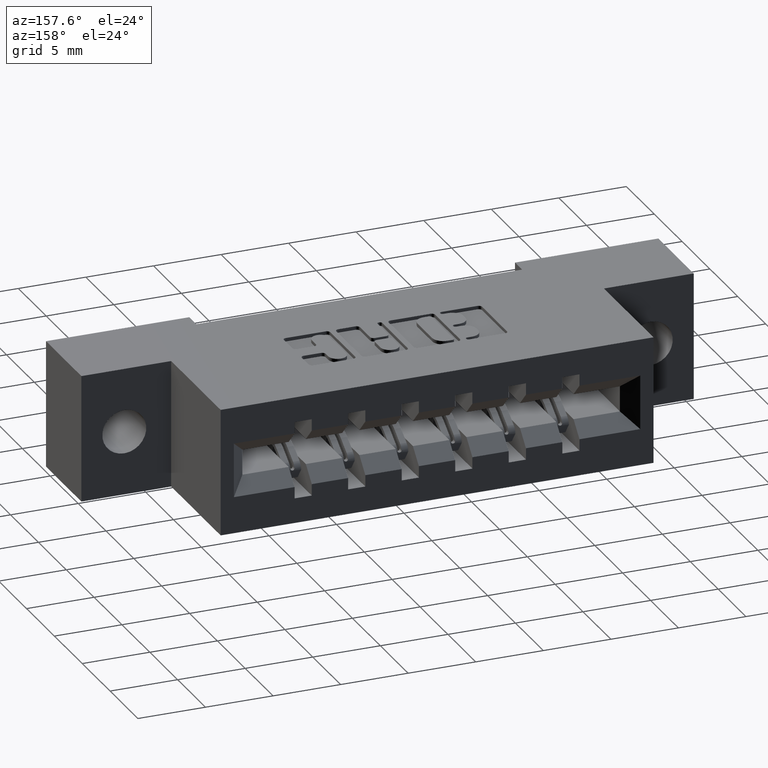
[diagram: clean part render]
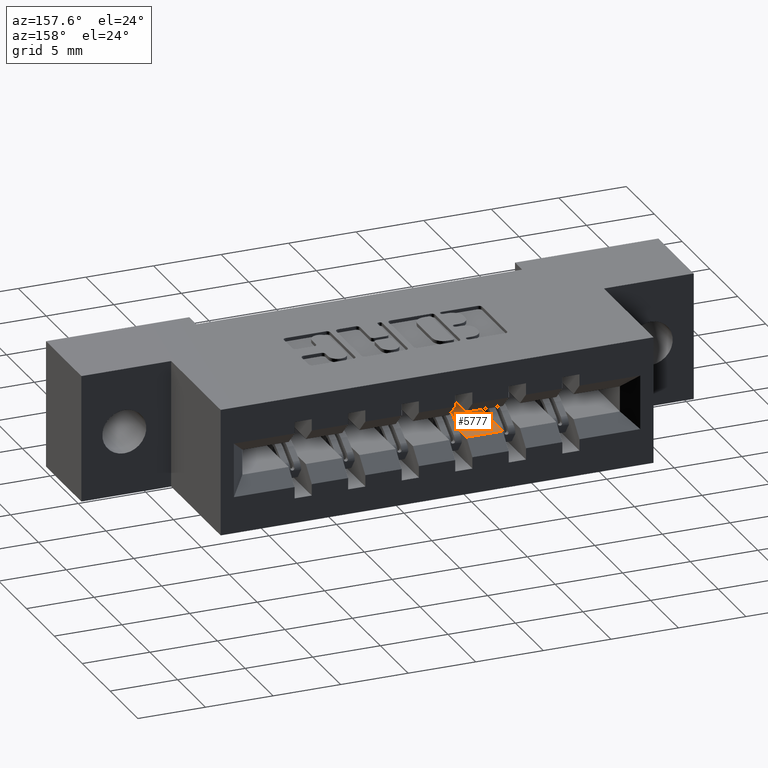
[diagram: same view with one face highlighted and labeled with its STEP entity id]
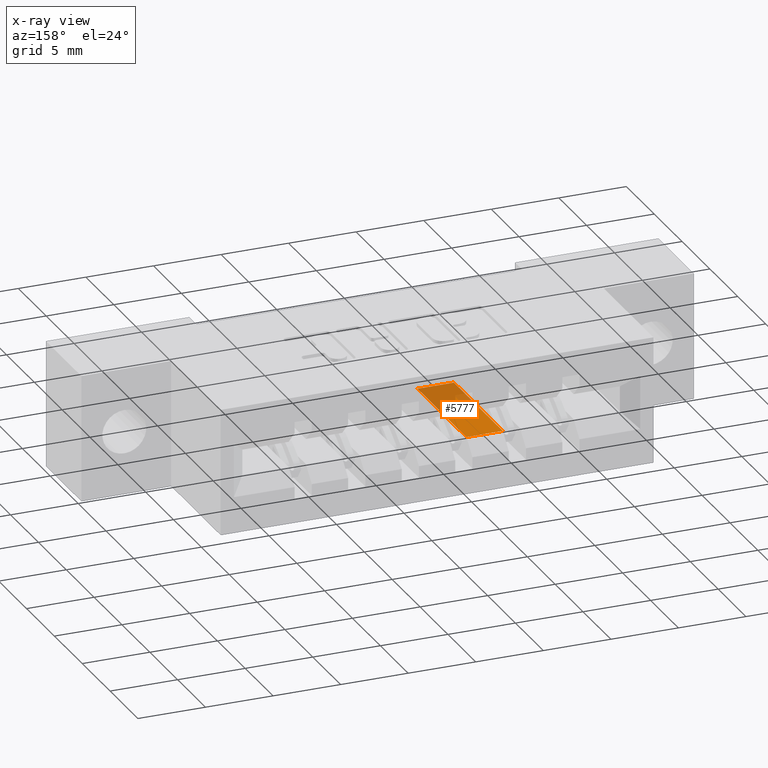
[diagram: x-ray of the same camera — body ghosted, the highlighted face saturated]
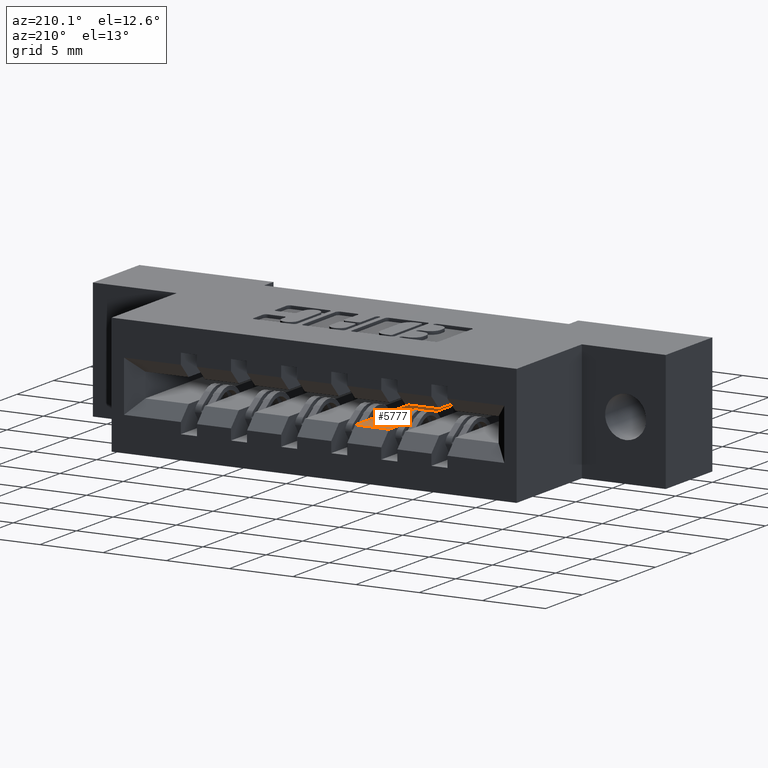
[diagram: same view with one face highlighted and labeled with its STEP entity id]
A machine part, auxiliary view. The second image highlights one B-rep face of the part: STEP entity #5777.
The next image is the same camera in x-ray: the body ghosted, the highlighted face saturated — about 46% of this face is hidden behind the body in this view.
A second angle (auxiliary view) of the same face is appended — the face is thin or edge-on in the first view.
In plain terms, the highlighted planar face has unit normal (0, 0, -1).
Its self-contained STEP definition (entity closure, byte-faithful):
#202 = DIRECTION ( 'NONE',  ( -1.000000000000000000, 0.0000000000000000000, -1.552186360036512475E-16 ) ) ;
#278 = CARTESIAN_POINT ( 'NONE',  ( 0.6829999999999999405, 0.5999999999999999778, -0.2220000000000002804 ) ) ;
#563 = VERTEX_POINT ( 'NONE', #1014 ) ;
#648 = ORIENTED_EDGE ( 'NONE', *, *, #4396, .F. ) ;
#805 = VERTEX_POINT ( 'NONE', #4096 ) ;
#927 = CARTESIAN_POINT ( 'NONE',  ( 0.3419999999999999152, 0.5579999999999999405, -0.2220000000000002804 ) ) ;
#970 = DIRECTION ( 'NONE',  ( 1.552186360036512475E-16, 0.0000000000000000000, -1.000000000000000000 ) ) ;
#1014 = CARTESIAN_POINT ( 'NONE',  ( 0.6829999999999999405, 0.5579999999999999405, -0.2220000000000002249 ) ) ;
#1562 = DIRECTION ( 'NONE',  ( -1.000000000000000000, -0.0000000000000000000, -1.552186360036512475E-16 ) ) ;
#1813 = FACE_OUTER_BOUND ( 'NONE', #7100, .T. ) ;
#1869 = AXIS2_PLACEMENT_3D ( 'NONE', #5036, #970, #3554 ) ;
#1955 = EDGE_CURVE ( 'NONE', #6454, #805, #2193, .T. ) ;
#2064 = DIRECTION ( 'NONE',  ( 0.0000000000000000000, -1.000000000000000000, 0.0000000000000000000 ) ) ;
#2193 = LINE ( 'NONE', #2743, #3804 ) ;
#2195 = LINE ( 'NONE', #4608, #4304 ) ;
#2444 = PLANE ( 'NONE',  #1869 ) ;
#2476 = EDGE_CURVE ( 'NONE', #563, #3272, #7389, .T. ) ;
#2743 = CARTESIAN_POINT ( 'NONE',  ( 0.7889999999999998126, 0.5999999999999999778, -0.2220000000000002804 ) ) ;
#3272 = VERTEX_POINT ( 'NONE', #6816 ) ;
#3542 = DIRECTION ( 'NONE',  ( 0.0000000000000000000, -1.000000000000000000, 0.0000000000000000000 ) ) ;
#3554 = DIRECTION ( 'NONE',  ( -1.000000000000000000, 0.0000000000000000000, -1.552186360036512475E-16 ) ) ;
#3599 = ORIENTED_EDGE ( 'NONE', *, *, #2476, .T. ) ;
#3804 = VECTOR ( 'NONE', #2064, 39.37007874015748143 ) ;
#4093 = ORIENTED_EDGE ( 'NONE', *, *, #5576, .T. ) ;
#4096 = CARTESIAN_POINT ( 'NONE',  ( 0.7889999999999998126, 0.2119999999999999385, -0.2220000000000002804 ) ) ;
#4304 = VECTOR ( 'NONE', #1562, 39.37007874015748143 ) ;
#4396 = EDGE_CURVE ( 'NONE', #805, #3272, #2195, .T. ) ;
#4608 = CARTESIAN_POINT ( 'NONE',  ( 0.3419999999999999152, 0.2119999999999999385, -0.2220000000000002804 ) ) ;
#5036 = CARTESIAN_POINT ( 'NONE',  ( 0.3419999999999999152, 0.2119999999999999385, -0.2220000000000002804 ) ) ;
#5414 = LINE ( 'NONE', #927, #6193 ) ;
#5576 = EDGE_CURVE ( 'NONE', #6454, #563, #5414, .T. ) ;
#5777 = ADVANCED_FACE ( 'NONE', ( #1813 ), #2444, .F. ) ;
#6193 = VECTOR ( 'NONE', #202, 39.37007874015748143 ) ;
#6454 = VERTEX_POINT ( 'NONE', #8135 ) ;
#6816 = CARTESIAN_POINT ( 'NONE',  ( 0.6829999999999999405, 0.2119999999999999385, -0.2220000000000002804 ) ) ;
#7100 = EDGE_LOOP ( 'NONE', ( #7724, #4093, #3599, #648 ) ) ;
#7389 = LINE ( 'NONE', #278, #8345 ) ;
#7724 = ORIENTED_EDGE ( 'NONE', *, *, #1955, .F. ) ;
#8135 = CARTESIAN_POINT ( 'NONE',  ( 0.7889999999999998126, 0.5580000000000000515, -0.2220000000000003360 ) ) ;
#8345 = VECTOR ( 'NONE', #3542, 39.37007874015748143 ) ;